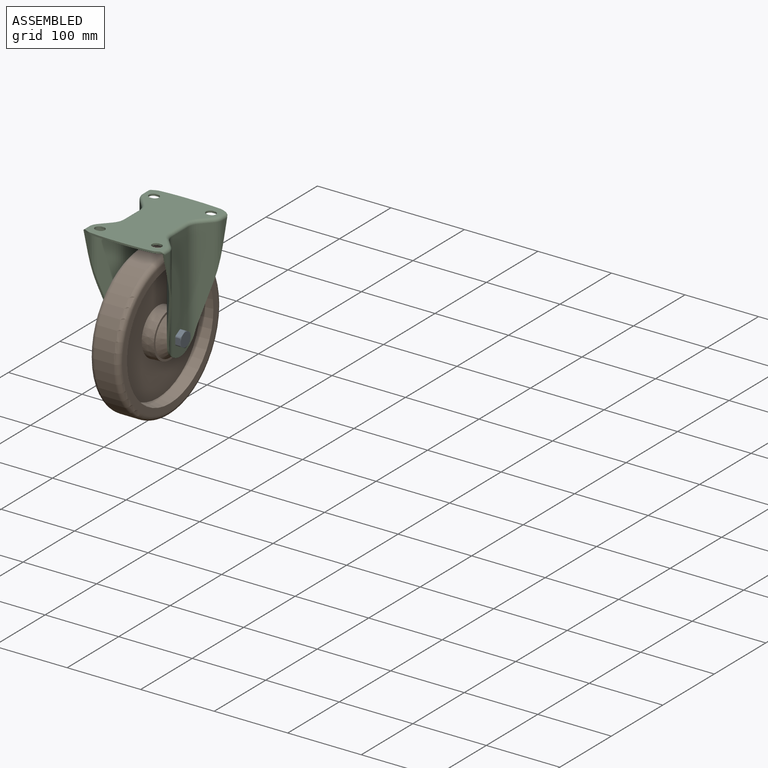
[diagram: assembled view]
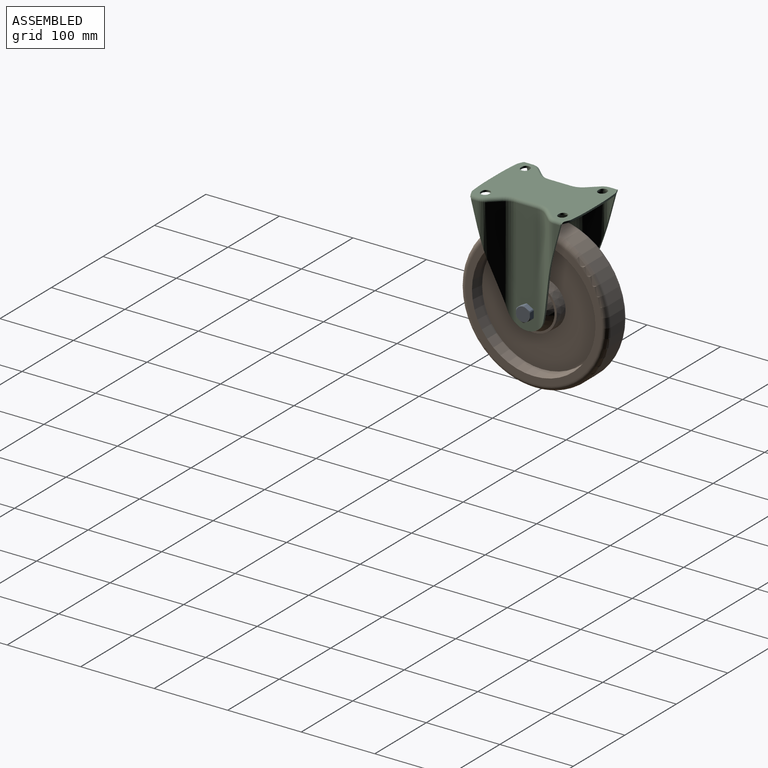
[diagram: assembled view, second angle]
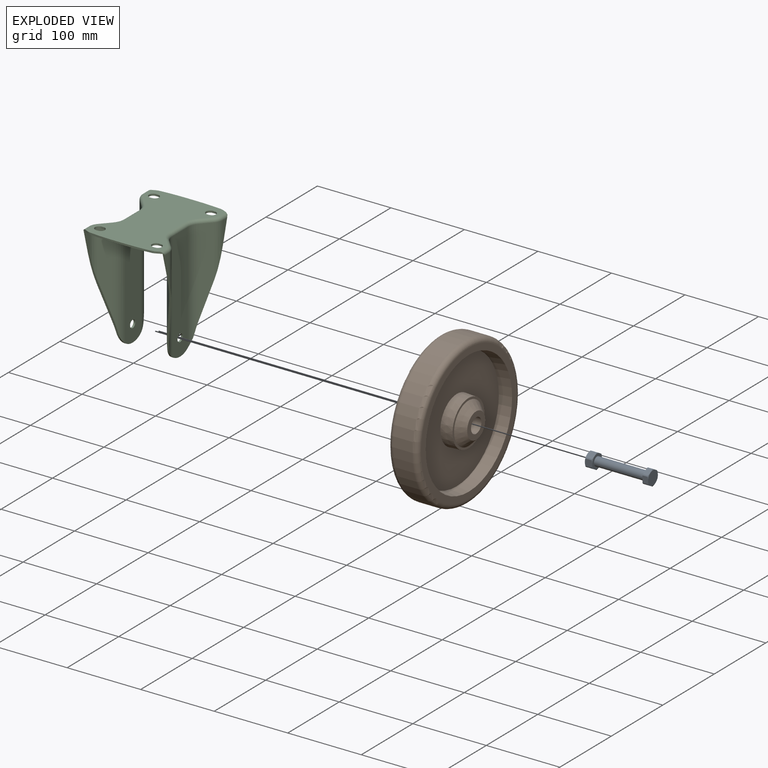
[diagram: exploded view]
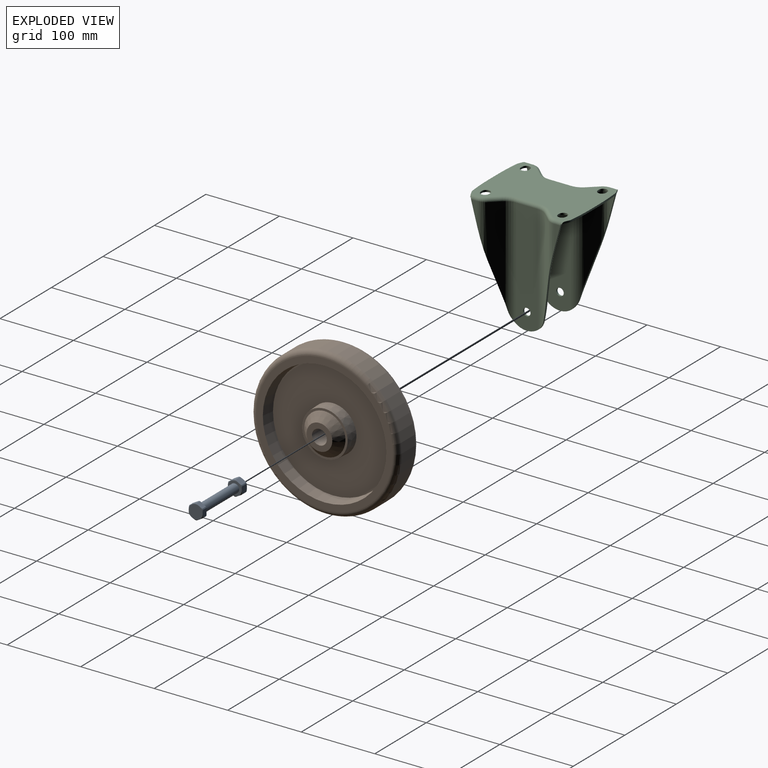
[diagram: exploded view, second angle]
ASSEMBLY  parts=3 mates=2
PART A: 51 faces, bbox 88x21.1x21.1 mm
  f0: torus R=6.6mm, axis (-1,0,0), area 36.8mm2, adj f3,f19
  f1: cylinder r=6mm len=12mm, axis (-1,0,0), area 34.3mm2, adj f2,f48
  f2: cone r=3mm half-angle=45deg, axis (1,0,0), area 52.9mm2, adj f1,f4
  f3: cylinder r=6mm len=67.9mm, axis (-1,0,0), area 2559.8mm2, adj f0,f47
  f4: plane 9.82x9.82mm, normal (-1,0,0), area 75.7mm2, adj f2
  f5: plane 7.95x7.5mm, normal (0,-0.5,-0.87), area 66.9mm2, adj f6,f7,f16,f19,f20
  f6: cone r=5.28mm half-angle=60deg, axis (-1,0,0), area 5.2mm2, adj f5,f7,f8,f22
  f7: cylinder r=10.55mm len=6.89mm, axis (-1,0,0), area 10.7mm2, adj f5,f6,f8,f19
  f8: plane 7.95x7.5mm, normal (0,0.5,-0.87), area 66.9mm2, adj f6,f7,f9,f10,f19
  f9: cone r=5.28mm half-angle=60deg, axis (-1,0,0), area 5.2mm2, adj f8,f10,f11,f22
  f10: cylinder r=10.55mm len=6.89mm, axis (-1,0,0), area 10.7mm2, adj f8,f9,f11,f19
  f11: plane 9.18x7.5mm, normal (0,1,0), area 66.9mm2, adj f9,f10,f12,f13,f19
  f12: cone r=5.28mm half-angle=60deg, axis (-1,0,0), area 5.2mm2, adj f11,f13,f14,f22
  f13: cylinder r=10.55mm len=6.89mm, axis (-1,0,0), area 10.7mm2, adj f11,f12,f14,f19
  f14: plane 7.95x7.5mm, normal (0,0.5,0.87), area 66.9mm2, adj f12,f13,f15,f17,f19
  f15: cone r=5.28mm half-angle=60deg, axis (-1,0,0), area 5.2mm2, adj f14,f17,f18,f22
  f16: cylinder r=10.55mm len=6.89mm, axis (-1,0,0), area 10.7mm2, adj f5,f19,f20,f21
  f17: cylinder r=10.55mm len=6.89mm, axis (-1,0,0), area 10.7mm2, adj f14,f15,f18,f19
  f18: plane 7.95x7.5mm, normal (0,-0.5,0.87), area 66.9mm2, adj f15,f17,f19,f23,f24
  f19: plane 21.1x19mm, normal (-1,0,0), area 173.9mm2, adj f0,f5,f7,f8,f10,f11,f13,f14
  f20: cone r=5.28mm half-angle=60deg, axis (-1,0,0), area 5.2mm2, adj f5,f16,f21,f22
  f21: plane 9.18x7.5mm, normal (0,-1,0), area 66.9mm2, adj f16,f19,f20,f23,f24
  f22: plane 19x19mm, normal (1,0,0), area 283.5mm2, adj f6,f9,f12,f15,f20,f23
  f23: cone r=5.28mm half-angle=60deg, axis (-1,0,0), area 5.2mm2, adj f18,f21,f22,f24
  f24: cylinder r=10.55mm len=6.89mm, axis (-1,0,0), area 10.7mm2, adj f18,f19,f21,f23
  f25: plane 10x7.95mm, normal (0,0.5,-0.87), area 88mm2, adj f26,f27,f28,f29,f43,f45
  f26: cone r=5.28mm half-angle=60deg, axis (1,0,0), area 5.2mm2, adj f25,f28,f30,f48
  f27: cone r=5.28mm half-angle=60deg, axis (1,0,0), area 5.2mm2, adj f25,f45,f46,f48
  f28: cylinder r=10.55mm len=8.79mm, axis (1,0,0), area 13.7mm2, adj f25,f26,f29,f30
  f29: cone r=5.28mm half-angle=60deg, axis (-1,0,0), area 5.2mm2, adj f25,f28,f30,f47
  f30: plane 10x7.95mm, normal (0,-0.5,-0.87), area 88mm2, adj f26,f28,f29,f31,f32,f33
  f31: cone r=5.28mm half-angle=60deg, axis (1,0,0), area 5.2mm2, adj f30,f32,f34,f48
  f32: cylinder r=10.55mm len=8.79mm, axis (1,0,0), area 13.7mm2, adj f30,f31,f33,f34
  f33: cone r=5.28mm half-angle=60deg, axis (-1,0,0), area 5.2mm2, adj f30,f32,f34,f47
  f34: plane 10x9.18mm, normal (0,-1,0), area 88mm2, adj f31,f32,f33,f35,f36,f37
  f35: cone r=5.28mm half-angle=60deg, axis (1,0,0), area 5.2mm2, adj f34,f36,f38,f48
  f36: cylinder r=10.55mm len=8.79mm, axis (1,0,0), area 13.7mm2, adj f34,f35,f37,f38
  f37: cone r=5.28mm half-angle=60deg, axis (-1,0,0), area 5.2mm2, adj f34,f36,f38,f47
  f38: plane 10x7.95mm, normal (0,-0.5,0.87), area 88mm2, adj f35,f36,f37,f39,f40,f41
  f39: cone r=5.28mm half-angle=60deg, axis (1,0,0), area 5.2mm2, adj f38,f40,f42,f48
  f40: cylinder r=10.55mm len=8.79mm, axis (1,0,0), area 13.7mm2, adj f38,f39,f41,f42
  f41: cone r=5.28mm half-angle=60deg, axis (-1,0,0), area 5.2mm2, adj f38,f40,f42,f47
  f42: plane 10x7.95mm, normal (0,0.5,0.87), area 88mm2, adj f39,f40,f41,f44,f49,f50
  f43: cone r=5.28mm half-angle=60deg, axis (-1,0,0), area 5.2mm2, adj f25,f45,f46,f47
  f44: cone r=5.28mm half-angle=60deg, axis (-1,0,0), area 5.2mm2, adj f42,f46,f47,f50
  f45: cylinder r=10.55mm len=8.79mm, axis (1,0,0), area 13.7mm2, adj f25,f27,f43,f46
  f46: plane 10x9.18mm, normal (0,1,0), area 88mm2, adj f27,f43,f44,f45,f49,f50
  f47: plane 19x19mm, normal (1,0,0), area 170.4mm2, adj f3,f29,f33,f37,f41,f43,f44
  f48: plane 19x19mm, normal (-1,0,0), area 170.4mm2, adj f1,f26,f27,f31,f35,f39,f49
  f49: cone r=5.28mm half-angle=60deg, axis (1,0,0), area 5.2mm2, adj f42,f46,f48,f50
  f50: cylinder r=10.55mm len=8.79mm, axis (1,0,0), area 13.7mm2, adj f42,f44,f46,f49
PART B: 18 faces, bbox 60x216.5x216.5 mm
  f0: cylinder r=100mm len=200mm, axis (1,0,0), area 16336.3mm2, adj f1,f2
  f1: torus R=93mm, axis (1,0,0), area 6733mm2, adj f0,f17
  f2: torus R=93mm, axis (-1,0,0), area 6733mm2, adj f0,f16
  f3: cone r=82.91mm half-angle=8deg, axis (-1,0,0), area 8648.1mm2, adj f14,f16
  f4: cone r=31.42mm half-angle=3deg, axis (1,0,0), area 3153.4mm2, adj f14,f15
  f5: cone r=82.91mm half-angle=8deg, axis (1,0,0), area 8648.1mm2, adj f12,f17
  f6: cone r=31.42mm half-angle=3deg, axis (-1,0,0), area 3153.4mm2, adj f12,f13
  f7: cylinder r=10.1mm len=60mm, axis (1,0,0), area 3807.6mm2, adj f10,f11
  f8: cone r=22.5mm half-angle=45deg, axis (1,0,0), area 2122.6mm2, adj f11,f15
  f9: cone r=22.5mm half-angle=45deg, axis (-1,0,0), area 2122.6mm2, adj f10,f13
  f10: plane 35x35mm, normal (1,0,0), area 641.6mm2, adj f7,f9
  f11: plane 35x35mm, normal (-1,0,0), area 641.6mm2, adj f7,f8
  f12: plane 163.38x163.38mm, normal (1,0,0), area 17779.4mm2, adj f5,f6
  f13: plane 62x62mm, normal (1,0,0), area 556.1mm2, adj f6,f9
  f14: plane 163.38x163.38mm, normal (-1,0,0), area 17779.4mm2, adj f3,f4
  f15: plane 62x62mm, normal (-1,0,0), area 556.1mm2, adj f4,f8
  f16: plane 186x186mm, normal (-1,0,0), area 5004.6mm2, adj f2,f3
  f17: plane 186x186mm, normal (1,0,0), area 5004.6mm2, adj f1,f5
PART C: 94 faces, bbox 113.8x139.2x159.2 mm
  f0: cylinder r=5.1mm len=10.2mm, axis (1,0,0), area 80.1mm2, adj f57,f58
  f1: cylinder r=5.1mm len=10.2mm, axis (-1,0,0), area 80.1mm2, adj f12,f13
  f2: plane 138.23x38.37mm, normal (0,-0.97,-0.26), area 419.1mm2, adj f3,f4,f5,f6,f7,f9,f31,f35
  f3: cylinder r=25mm len=48.25mm, axis (-1,0,0), area 167.7mm2, adj f2,f10,f11,f12,f13,f14,f31,f36
  f4: plane 118.97x13.22mm, normal (-0.74,0.67,0), area 1693.9mm2, adj f2,f5,f24,f31
  f5: cylinder r=16mm len=70.27mm, axis (0,0,-1), area 608.3mm2, adj f2,f4,f6,f27
  f6: plane 30.5x8.28mm, normal (-1,0,0), area 126.3mm2, adj f2,f5,f7
  f7: cylinder r=4.5mm len=11.59mm, axis (0,1,0), area 70.9mm2, adj f2,f6,f8,f27,f53,f70
  f8: plane 8.56x4.15mm, normal (-0.42,-0.91,0), area 19.5mm2, adj f7,f38,f53,f70
  f9: plane 32.5x8.82mm, normal (1,0,0), area 143.4mm2, adj f2,f35,f53
  f10: plane 138.23x38.37mm, normal (0,0.97,-0.26), area 419.1mm2, adj f3,f11,f14,f15,f26,f29,f33,f40
  f11: cylinder r=20mm len=148.5mm, axis (0,0,1), area 2034.8mm2, adj f3,f10,f12,f26,f32
  f12: plane 153.5x30mm, normal (-1,0,0), area 4475.5mm2, adj f1,f3,f11,f31,f34
  f13: plane 155.5x30mm, normal (1,0,0), area 4535.5mm2, adj f1,f3,f14,f36,f53
  f14: cylinder r=22.5mm len=150.5mm, axis (0,0,1), area 2279.6mm2, adj f3,f10,f13,f15,f53
  f15: plane 114.76x13.22mm, normal (0.74,0.67,0), area 1618.5mm2, adj f10,f14,f40,f53
  f16: cylinder r=5.5mm len=11mm, axis (0,0,1), area 43.2mm2, adj f17,f19,f53,f70
  f17: plane 2.5x2.5mm, normal (0,1,0), area 6.3mm2, adj f16,f18,f53,f70
  f18: cylinder r=5.5mm len=11mm, axis (0,0,1), area 43.2mm2, adj f17,f19,f53,f70
  f19: plane 2.5x2.5mm, normal (0,-1,0), area 6.3mm2, adj f16,f18,f53,f70
  f20: cylinder r=5.5mm len=11mm, axis (0,0,1), area 43.2mm2, adj f21,f23,f53,f70
  f21: plane 2.5x2.5mm, normal (0,1,0), area 6.3mm2, adj f20,f22,f53,f70
  f22: cylinder r=5.5mm len=11mm, axis (0,0,1), area 43.2mm2, adj f21,f23,f53,f70
  f23: plane 2.5x2.5mm, normal (0,-1,0), area 6.3mm2, adj f20,f22,f53,f70
  f24: cylinder r=4.5mm len=16.25mm, axis (-0.67,-0.74,0), area 126.5mm2, adj f4,f27,f30,f70
  f25: cylinder r=4.5mm len=16.25mm, axis (-0.67,0.74,0), area 126.5mm2, adj f26,f28,f32,f70
  f26: plane 118.97x13.22mm, normal (-0.74,-0.67,0), area 1693.9mm2, adj f10,f11,f25,f29
  f27: torus R=11.5mm, axis (0,0,-1), area 75.2mm2, adj f5,f7,f24,f70
  f28: torus R=11.5mm, axis (0,0,1), area 75.2mm2, adj f25,f29,f33,f70
  f29: cylinder r=16mm len=70.27mm, axis (0,0,1), area 608.3mm2, adj f10,f26,f28,f42
  f30: torus R=24.5mm, axis (0,0,-1), area 113.2mm2, adj f24,f31,f34,f70
  f31: cylinder r=20mm len=148.5mm, axis (0,0,-1), area 2034.8mm2, adj f2,f3,f4,f12,f30
  f32: torus R=24.5mm, axis (0,0,1), area 113.2mm2, adj f11,f25,f34,f70
  f33: cylinder r=4.5mm len=11.59mm, axis (0,1,0), area 70.9mm2, adj f10,f28,f42,f43,f53,f70
  f34: cylinder r=4.5mm len=30mm, axis (0,1,0), area 212.1mm2, adj f12,f30,f32,f70
  f35: cylinder r=13.5mm len=66.06mm, axis (0,0,-1), area 500.7mm2, adj f2,f9,f37,f53
  f36: cylinder r=22.5mm len=150.5mm, axis (0,0,-1), area 2279.6mm2, adj f2,f3,f13,f37,f53
  f37: plane 114.76x13.22mm, normal (0.74,-0.67,0), area 1618.5mm2, adj f2,f35,f36,f53
  f38: cylinder r=15.01mm len=4.85mm, axis (0,0,-1), area 12.6mm2, adj f8,f39,f53,f70
  f39: cylinder r=349.96mm len=34.27mm, axis (0,0,-1), area 85.8mm2, adj f38,f53,f70,f93
  f40: cylinder r=13.5mm len=66.06mm, axis (0,0,1), area 500.7mm2, adj f10,f15,f41,f53
  f41: plane 32.5x8.82mm, normal (1,0,0), area 143.4mm2, adj f10,f40,f53
  f42: plane 30.5x8.28mm, normal (-1,0,0), area 126.3mm2, adj f10,f29,f33
  f43: plane 8.56x4.15mm, normal (-0.42,0.91,0), area 19.5mm2, adj f33,f44,f53,f70
  f44: cylinder r=15.01mm len=4.85mm, axis (0,0,1), area 12.6mm2, adj f43,f45,f53,f70
  f45: cylinder r=349.96mm len=34.27mm, axis (0,0,1), area 85.8mm2, adj f44,f53,f70,f86
  f46: plane 138.23x38.37mm, normal (0,0.97,-0.26), area 419.1mm2, adj f47,f48,f49,f50,f51,f53,f54,f77
  f47: cylinder r=25mm len=48.25mm, axis (1,0,0), area 167.7mm2, adj f46,f55,f56,f57,f58,f59,f77,f82
  f48: plane 118.97x13.22mm, normal (0.74,-0.67,0), area 1693.9mm2, adj f46,f49,f69,f77
  f49: cylinder r=16mm len=70.27mm, axis (0,0,-1), area 608.3mm2, adj f46,f48,f50,f73
  f50: plane 30.5x8.28mm, normal (1,0,0), area 126.3mm2, adj f46,f49,f51
  f51: cylinder r=4.5mm len=11.59mm, axis (0,-1,0), area 70.9mm2, adj f46,f50,f52,f53,f70,f73
  f52: plane 8.56x4.15mm, normal (0.42,0.91,0), area 19.5mm2, adj f51,f53,f70,f84
  f53: plane 138x109.06mm, normal (0,0,-1), area 10755.7mm2, adj f2,f7,f8,f9,f10,f13,f14,f15
  f54: plane 32.5x8.82mm, normal (-1,0,0), area 143.4mm2, adj f46,f53,f81
  f55: plane 138.23x38.37mm, normal (0,-0.97,-0.26), area 419.1mm2, adj f47,f53,f56,f59,f60,f72,f75,f79
  f56: cylinder r=20mm len=148.5mm, axis (0,0,1), area 2034.8mm2, adj f47,f55,f57,f72,f78
  f57: plane 153.5x30mm, normal (1,0,0), area 4475.5mm2, adj f0,f47,f56,f77,f80
  f58: plane 155.5x30mm, normal (-1,0,0), area 4535.5mm2, adj f0,f47,f53,f59,f82
  f59: cylinder r=22.5mm len=150.5mm, axis (0,0,1), area 2279.6mm2, adj f47,f53,f55,f58,f60
  f60: plane 114.76x13.22mm, normal (-0.74,-0.67,0), area 1618.5mm2, adj f53,f55,f59,f87
  f61: cylinder r=5.5mm len=11mm, axis (0,0,1), area 43.2mm2, adj f53,f62,f64,f70
  f62: plane 2.5x2.5mm, normal (0,-1,0), area 6.3mm2, adj f53,f61,f63,f70
  f63: cylinder r=5.5mm len=11mm, axis (0,0,1), area 43.2mm2, adj f53,f62,f64,f70
  f64: plane 2.5x2.5mm, normal (0,1,0), area 6.3mm2, adj f53,f61,f63,f70
  f65: cylinder r=5.5mm len=11mm, axis (0,0,1), area 43.2mm2, adj f53,f66,f68,f70
  f66: plane 2.5x2.5mm, normal (0,-1,0), area 6.3mm2, adj f53,f65,f67,f70
  f67: cylinder r=5.5mm len=11mm, axis (0,0,1), area 43.2mm2, adj f53,f66,f68,f70
  f68: plane 2.5x2.5mm, normal (0,1,0), area 6.3mm2, adj f53,f65,f67,f70
  f69: cylinder r=4.5mm len=16.25mm, axis (0.67,0.74,0), area 126.5mm2, adj f48,f70,f73,f76
  f70: plane 138x101mm, normal (0,0,1), area 10179.2mm2, adj f7,f8,f16,f17,f18,f19,f20,f21
  f71: cylinder r=4.5mm len=16.25mm, axis (0.67,-0.74,0), area 126.5mm2, adj f70,f72,f74,f78
  f72: plane 118.97x13.22mm, normal (0.74,0.67,0), area 1693.9mm2, adj f55,f56,f71,f75
  f73: torus R=11.5mm, axis (0,0,-1), area 75.2mm2, adj f49,f51,f69,f70
  f74: torus R=11.5mm, axis (0,0,1), area 75.2mm2, adj f70,f71,f75,f79
  f75: cylinder r=16mm len=70.27mm, axis (0,0,1), area 608.3mm2, adj f55,f72,f74,f89
  f76: torus R=24.5mm, axis (0,0,-1), area 113.2mm2, adj f69,f70,f77,f80
  f77: cylinder r=20mm len=148.5mm, axis (0,0,-1), area 2034.8mm2, adj f46,f47,f48,f57,f76
  f78: torus R=24.5mm, axis (0,0,1), area 113.2mm2, adj f56,f70,f71,f80
  f79: cylinder r=4.5mm len=11.59mm, axis (0,-1,0), area 70.9mm2, adj f53,f55,f70,f74,f89,f90
  f80: cylinder r=4.5mm len=30mm, axis (0,-1,0), area 212.1mm2, adj f57,f70,f76,f78
  f81: cylinder r=13.5mm len=66.06mm, axis (0,0,-1), area 500.7mm2, adj f46,f53,f54,f83
  f82: cylinder r=22.5mm len=150.5mm, axis (0,0,-1), area 2279.6mm2, adj f46,f47,f53,f58,f83
  f83: plane 114.76x13.22mm, normal (-0.74,0.67,0), area 1618.5mm2, adj f46,f53,f81,f82
  f84: cylinder r=15.01mm len=4.85mm, axis (0,0,-1), area 12.6mm2, adj f52,f53,f70,f85
  f85: cylinder r=349.96mm len=34.27mm, axis (0,0,-1), area 85.8mm2, adj f53,f70,f84,f86
  f86: plane 14.36x2.5mm, normal (0,1,0), area 35.9mm2, adj f45,f53,f70,f85
  f87: cylinder r=13.5mm len=66.06mm, axis (0,0,1), area 500.7mm2, adj f53,f55,f60,f88
  f88: plane 32.5x8.82mm, normal (-1,0,0), area 143.4mm2, adj f53,f55,f87
  f89: plane 30.5x8.28mm, normal (1,0,0), area 126.3mm2, adj f55,f75,f79
  f90: plane 8.56x4.15mm, normal (0.42,-0.91,0), area 19.5mm2, adj f53,f70,f79,f91
  f91: cylinder r=15.01mm len=4.85mm, axis (0,0,1), area 12.6mm2, adj f53,f70,f90,f92
  f92: cylinder r=349.96mm len=34.27mm, axis (0,0,1), area 85.8mm2, adj f53,f70,f91,f93
  f93: plane 14.36x2.5mm, normal (0,-1,0), area 35.9mm2, adj f39,f53,f70,f92
PLACE A at identity
PLACE B rot(axis=(1,0,0),180deg) t=(0,0,-270)mm
PLACE C at identity
MATE fastened C.f0 <-> A.f0  axis (1,0,0) through (33.5,0,-135)mm
MATE revolute B.f0 <-> C.f0  axis (1,0,0) through (30,0,-135)mm
